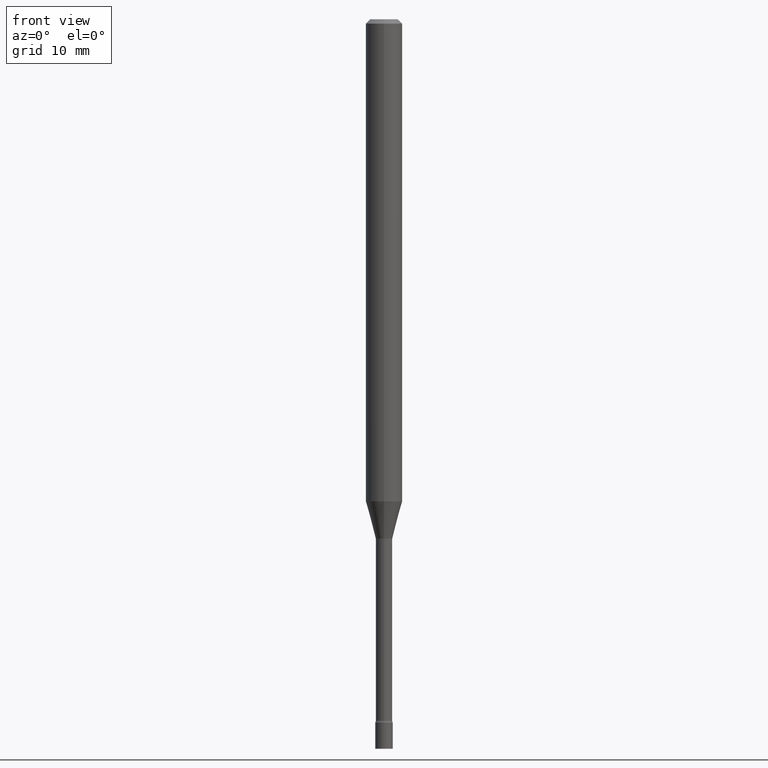
[diagram: clean part render]
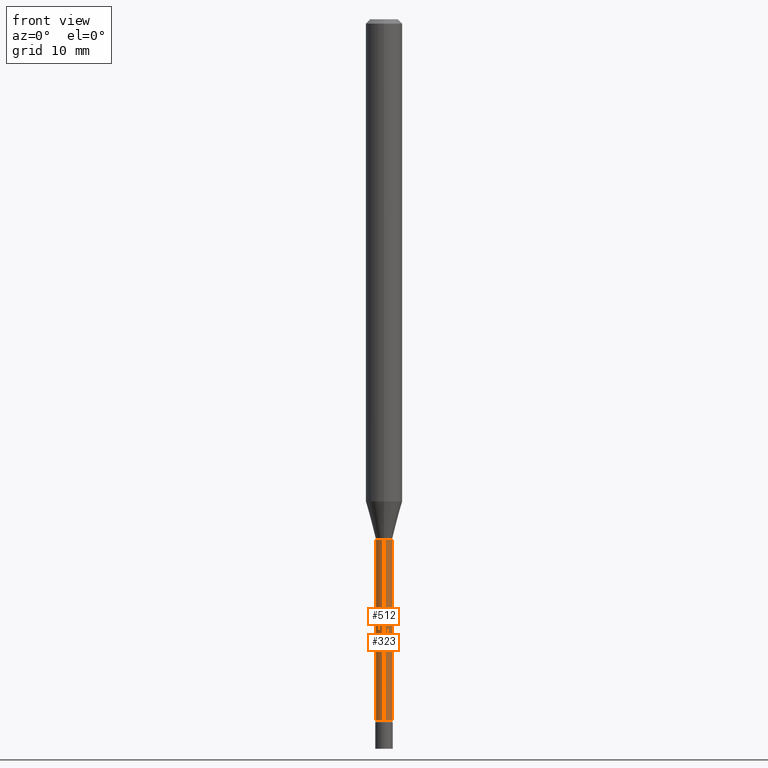
[diagram: same view with one multi-face feature highlighted, each face labeled with its STEP entity id]
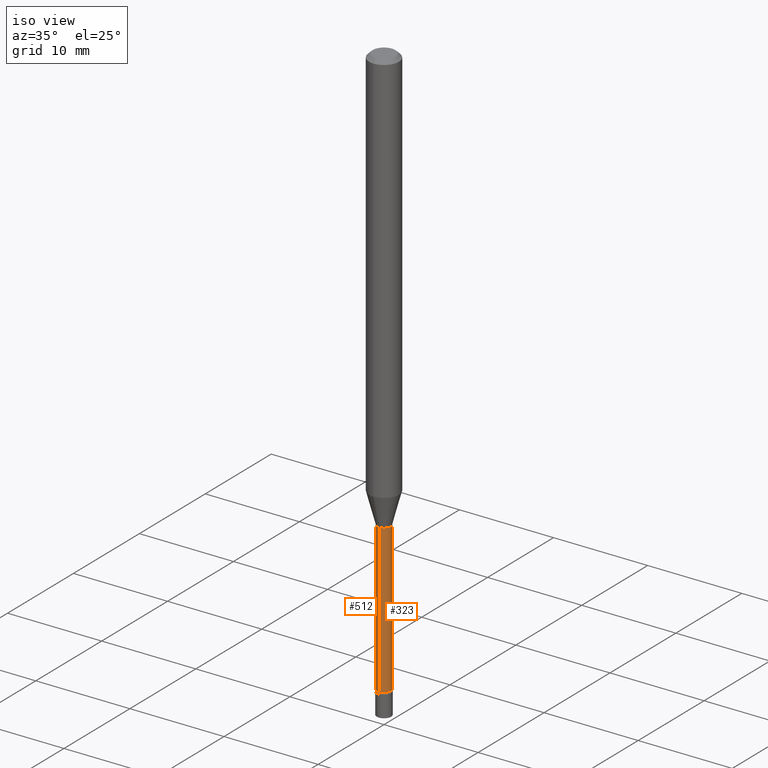
[diagram: same view with one multi-face feature highlighted, each face labeled with its STEP entity id]
A machine part, front view. The highlighted faces form ONE feature: a constant-radius fillet chain: 2 tangent blend faces with common blend radius 0.7163 mm. The faces share edges in the B-rep.
A second angle (iso view) of the same feature is appended — it is thin or edge-on in the first view.
Their STEP definitions:
[1] entity #512 (Cylinder):
#6 = VERTEX_POINT ( 'NONE', #228 ) ;
#15 = ORIENTED_EDGE ( 'NONE', *, *, #446, .T. ) ;
#20 = CARTESIAN_POINT ( 'NONE',  ( 0.000000000000000000, 0.000000000000000000, 0.000000000000000000 ) ) ;
#43 = DIRECTION ( 'NONE',  ( -2.445500294341348638E-29, 3.491436246011255464E-15, 1.000000000000000000 ) ) ;
#52 = ORIENTED_EDGE ( 'NONE', *, *, #428, .F. ) ;
#77 = CARTESIAN_POINT ( 'NONE',  ( 4.357819867251612276E-29, -6.221651362429354140E-15, -1.781974787463811216 ) ) ;
#92 = AXIS2_PLACEMENT_3D ( 'NONE', #177, #226, #94 ) ;
#94 = DIRECTION ( 'NONE',  ( -6.982962677686265922E-15, -1.000000000000000000, 0.000000000000000000 ) ) ;
#103 = AXIS2_PLACEMENT_3D ( 'NONE', #20, #191, #301 ) ;
#130 = VECTOR ( 'NONE', #326, 39.37007874015748143 ) ;
#138 = CARTESIAN_POINT ( 'NONE',  ( 2.003730514843485684E-16, 0.02820000000000004794, -9.845850213751757581E-17 ) ) ;
#151 = VERTEX_POINT ( 'NONE', #513 ) ;
#152 = FACE_OUTER_BOUND ( 'NONE', #186, .T. ) ;
#154 = EDGE_CURVE ( 'NONE', #302, #291, #377, .T. ) ;
#177 = CARTESIAN_POINT ( 'NONE',  ( 5.876232485121274110E-29, -8.389486247870995821E-15, -2.402875394747777893 ) ) ;
#186 = EDGE_LOOP ( 'NONE', ( #52, #215, #15, #368 ) ) ;
#191 = DIRECTION ( 'NONE',  ( -2.445500294341348638E-29, 3.491436246011255464E-15, 1.000000000000000000 ) ) ;
#215 = ORIENTED_EDGE ( 'NONE', *, *, #364, .T. ) ;
#221 = CARTESIAN_POINT ( 'NONE',  ( -1.969195475107530228E-16, -0.02820000000000004794, 9.845850213751757581E-17 ) ) ;
#226 = DIRECTION ( 'NONE',  ( -2.445500294341348638E-29, 3.491436246011255464E-15, 1.000000000000000000 ) ) ;
#228 = CARTESIAN_POINT ( 'NONE',  ( 2.067679361062482755E-16, 0.02819999999999171086, -2.402875394747777893 ) ) ;
#263 = LINE ( 'NONE', #138, #347 ) ;
#291 = VERTEX_POINT ( 'NONE', #403 ) ;
#300 = CYLINDRICAL_SURFACE ( 'NONE', #103, 0.02820000000000004794 ) ;
#301 = DIRECTION ( 'NONE',  ( -6.982962677686265922E-15, -1.000000000000000000, 3.491436246011255464E-15 ) ) ;
#302 = VERTEX_POINT ( 'NONE', #363 ) ;
#326 = DIRECTION ( 'NONE',  ( -2.445500294341348918E-29, 3.491436246011255464E-15, 1.000000000000000000 ) ) ;
#347 = VECTOR ( 'NONE', #480, 39.37007874015748143 ) ;
#361 = LINE ( 'NONE', #221, #130 ) ;
#363 = CARTESIAN_POINT ( 'NONE',  ( 2.003730514844072646E-16, 0.02819999999999377518, -1.781974787463811216 ) ) ;
#364 = EDGE_CURVE ( 'NONE', #6, #151, #502, .T. ) ;
#368 = ORIENTED_EDGE ( 'NONE', *, *, #154, .F. ) ;
#377 = CIRCLE ( 'NONE', #433, 0.02819999999999999590 ) ;
#403 = CARTESIAN_POINT ( 'NONE',  ( -1.969195475107090931E-16, -0.02820000000000622009, -1.781974787463811216 ) ) ;
#428 = EDGE_CURVE ( 'NONE', #6, #302, #263, .T. ) ;
#433 = AXIS2_PLACEMENT_3D ( 'NONE', #77, #43, #435 ) ;
#435 = DIRECTION ( 'NONE',  ( -6.982962677686265922E-15, -1.000000000000000000, 0.000000000000000000 ) ) ;
#446 = EDGE_CURVE ( 'NONE', #151, #291, #361, .T. ) ;
#480 = DIRECTION ( 'NONE',  ( -2.445500294341348918E-29, 3.491436246011255464E-15, 1.000000000000000000 ) ) ;
#502 = CIRCLE ( 'NONE', #92, 0.02820000000000009999 ) ;
#512 = ADVANCED_FACE ( 'NONE', ( #152 ), #300, .T. ) ;
#513 = CARTESIAN_POINT ( 'NONE',  ( -1.969195475106946471E-16, -0.02820000000000848911, -2.402875394747777893 ) ) ;
[2] entity #323 (Cylinder):
#4 = CARTESIAN_POINT ( 'NONE',  ( 4.357819867251612276E-29, -6.221651362429354140E-15, -1.781974787463811216 ) ) ;
#6 = VERTEX_POINT ( 'NONE', #228 ) ;
#19 = CIRCLE ( 'NONE', #288, 0.02819999999999999590 ) ;
#53 = AXIS2_PLACEMENT_3D ( 'NONE', #126, #352, #427 ) ;
#58 = ORIENTED_EDGE ( 'NONE', *, *, #446, .F. ) ;
#68 = ORIENTED_EDGE ( 'NONE', *, *, #428, .T. ) ;
#93 = DIRECTION ( 'NONE',  ( -6.982962677686265922E-15, -1.000000000000000000, 3.491436246011255464E-15 ) ) ;
#113 = AXIS2_PLACEMENT_3D ( 'NONE', #284, #441, #93 ) ;
#126 = CARTESIAN_POINT ( 'NONE',  ( 5.876232485121274110E-29, -8.389486247870995821E-15, -2.402875394747777893 ) ) ;
#130 = VECTOR ( 'NONE', #326, 39.37007874015748143 ) ;
#138 = CARTESIAN_POINT ( 'NONE',  ( 2.003730514843485684E-16, 0.02820000000000004794, -9.845850213751757581E-17 ) ) ;
#146 = EDGE_LOOP ( 'NONE', ( #294, #68, #384, #58 ) ) ;
#151 = VERTEX_POINT ( 'NONE', #513 ) ;
#164 = CIRCLE ( 'NONE', #53, 0.02820000000000009999 ) ;
#192 = EDGE_CURVE ( 'NONE', #151, #6, #164, .T. ) ;
#221 = CARTESIAN_POINT ( 'NONE',  ( -1.969195475107530228E-16, -0.02820000000000004794, 9.845850213751757581E-17 ) ) ;
#228 = CARTESIAN_POINT ( 'NONE',  ( 2.067679361062482755E-16, 0.02819999999999171086, -2.402875394747777893 ) ) ;
#263 = LINE ( 'NONE', #138, #347 ) ;
#271 = EDGE_CURVE ( 'NONE', #291, #302, #19, .T. ) ;
#284 = CARTESIAN_POINT ( 'NONE',  ( 0.000000000000000000, 0.000000000000000000, 0.000000000000000000 ) ) ;
#288 = AXIS2_PLACEMENT_3D ( 'NONE', #4, #289, #519 ) ;
#289 = DIRECTION ( 'NONE',  ( -2.445500294341348638E-29, 3.491436246011255464E-15, 1.000000000000000000 ) ) ;
#291 = VERTEX_POINT ( 'NONE', #403 ) ;
#294 = ORIENTED_EDGE ( 'NONE', *, *, #192, .T. ) ;
#302 = VERTEX_POINT ( 'NONE', #363 ) ;
#323 = ADVANCED_FACE ( 'NONE', ( #412 ), #372, .T. ) ;
#326 = DIRECTION ( 'NONE',  ( -2.445500294341348918E-29, 3.491436246011255464E-15, 1.000000000000000000 ) ) ;
#347 = VECTOR ( 'NONE', #480, 39.37007874015748143 ) ;
#352 = DIRECTION ( 'NONE',  ( -2.445500294341348638E-29, 3.491436246011255464E-15, 1.000000000000000000 ) ) ;
#361 = LINE ( 'NONE', #221, #130 ) ;
#363 = CARTESIAN_POINT ( 'NONE',  ( 2.003730514844072646E-16, 0.02819999999999377518, -1.781974787463811216 ) ) ;
#372 = CYLINDRICAL_SURFACE ( 'NONE', #113, 0.02820000000000004794 ) ;
#384 = ORIENTED_EDGE ( 'NONE', *, *, #271, .F. ) ;
#403 = CARTESIAN_POINT ( 'NONE',  ( -1.969195475107090931E-16, -0.02820000000000622009, -1.781974787463811216 ) ) ;
#412 = FACE_OUTER_BOUND ( 'NONE', #146, .T. ) ;
#427 = DIRECTION ( 'NONE',  ( -6.982962677686265922E-15, -1.000000000000000000, 0.000000000000000000 ) ) ;
#428 = EDGE_CURVE ( 'NONE', #6, #302, #263, .T. ) ;
#441 = DIRECTION ( 'NONE',  ( -2.445500294341348638E-29, 3.491436246011255464E-15, 1.000000000000000000 ) ) ;
#446 = EDGE_CURVE ( 'NONE', #151, #291, #361, .T. ) ;
#480 = DIRECTION ( 'NONE',  ( -2.445500294341348918E-29, 3.491436246011255464E-15, 1.000000000000000000 ) ) ;
#513 = CARTESIAN_POINT ( 'NONE',  ( -1.969195475106946471E-16, -0.02820000000000848911, -2.402875394747777893 ) ) ;
#519 = DIRECTION ( 'NONE',  ( -6.982962677686265922E-15, -1.000000000000000000, 0.000000000000000000 ) ) ;